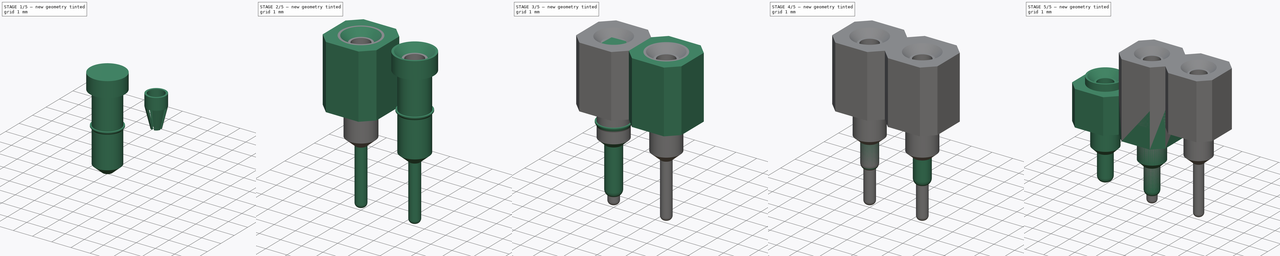
[diagram: build sequence overview — one tinted view per stage of 5, left to right]
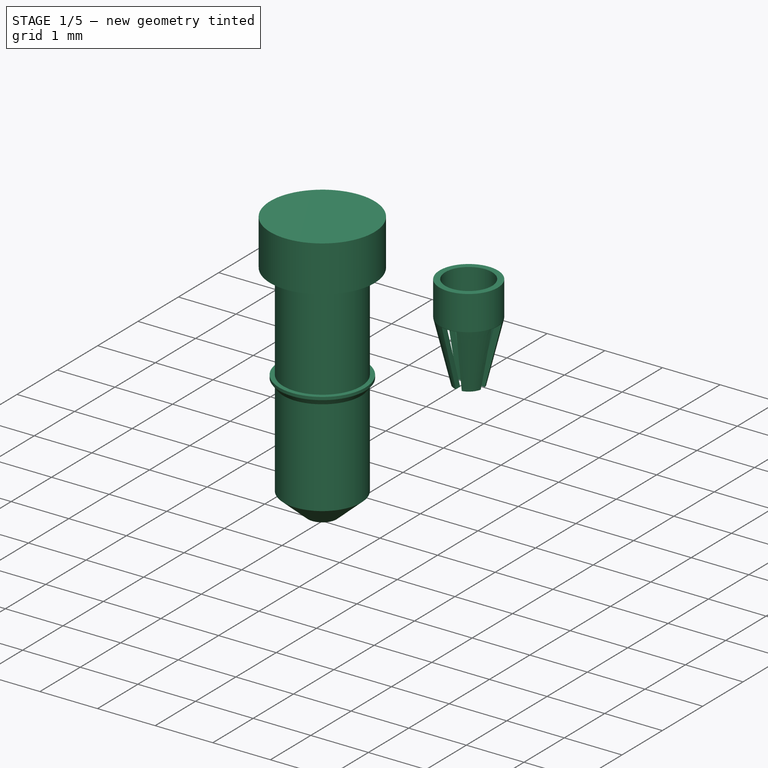
[diagram: stage 1 of 5 — iso view after this stage's code; geometry added in this stage tinted green]
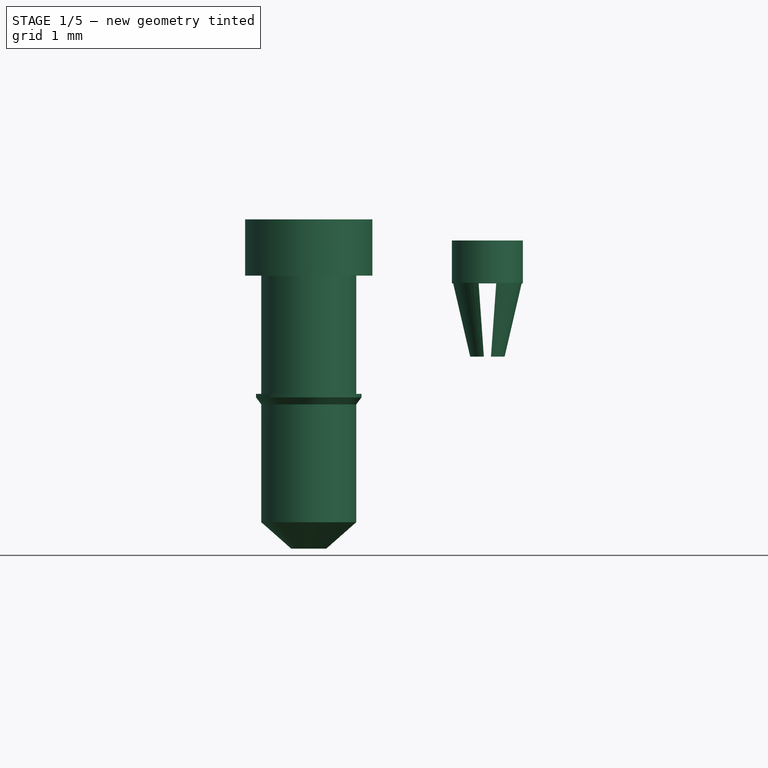
[diagram: stage 1 of 5 — front view after this stage's code; geometry added in this stage tinted green]
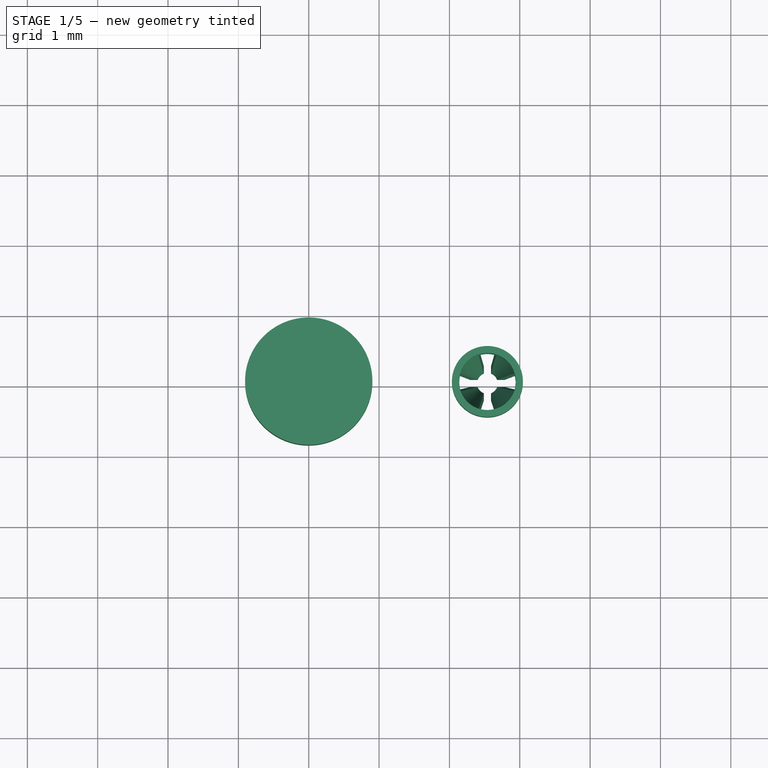
[diagram: stage 1 of 5 — top view after this stage's code; geometry added in this stage tinted green]
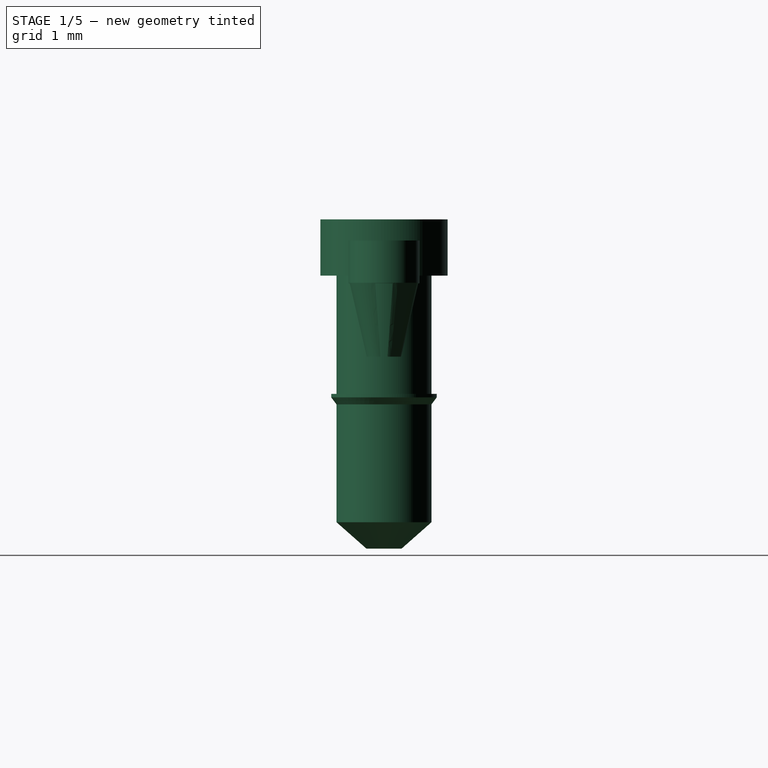
[diagram: stage 1 of 5 — right view after this stage's code; geometry added in this stage tinted green]
FCSTD DOCUMENT  (FreeCAD 0.16R6703 (Git))
Label: Socket_Round
License: All rights reserved
LicenseURL: http://en.wikipedia.org/wiki/All_rights_reserved
objects: Sketcher::SketchObject×28, Part::Extrusion×14, Part::Cut×9, Part::FeaturePython×7, Part::Loft×6, Part::MultiFuse×6, Part::Chamfer×5, Part::Compound×3, Part::Fillet×2, Part::Thickness×1
note: 81 computed .brp shape members not serialized (recipe doc carries the construction recipe); baked Part::Feature solids carry a one-line shape summary decoded from their .brp

FEATURE [Sketcher::SketchObject] Sketch008
  Placement = pos=(0,0,3.4) rot=(0,0,1;0rad)
  sketch-geometry (1):
    g0: Circle CenterX=0 CenterY=0 CenterZ=0 NormalX=0 NormalY=0 NormalZ=1 Radius=0.505
  constraints (2):
    c: Coincident(g0,g-1)
    c: Radius(g0) = 0.505
FEATURE [Sketcher::SketchObject] Sketch009
  Placement = pos=(0,0,2.8) rot=(0,0,1;0rad)
  sketch-geometry (1):
    g0: Circle CenterX=0 CenterY=0 CenterZ=0 NormalX=0 NormalY=0 NormalZ=1 Radius=0.505
  constraints (2):
    c: Coincident(g0,g-1)
    c: Radius(g0) = 0.505
FEATURE [Sketcher::SketchObject] Sketch010
  Placement = pos=(0,0,1.75) rot=(0,0,1;0rad)
  sketch-geometry (1):
    g0: Circle CenterX=0 CenterY=0 CenterZ=0 NormalX=0 NormalY=0 NormalZ=1 Radius=0.25
  constraints (2):
    c: Coincident(g0,g-1)
    c: Radius(g0) = 0.25
FEATURE [Part::Loft] Loft001
  Closed = false
  Ruled = true
  Sections = -> [Sketch008,Sketch009,Sketch010]
  Solid = true
FEATURE [Part::Thickness] Thickness
  Faces = -> Loft001 [Face3,Face4]
  Intersection = false
  Join = 2
  Mode = 0
  SelfIntersection = false
  Value = -0.1
FEATURE [Sketcher::SketchObject] Sketch011
  Placement = pos=(0,0,2.79) rot=(0,0,1;0rad)
  sketch-geometry (4):
    g0: LineSegment StartX=-0.125 StartY=0.686573 StartZ=0 EndX=0.125 EndY=0.686573 EndZ=0
    g1: LineSegment StartX=0.125 StartY=0.686573 StartZ=0 EndX=0.125 EndY=-0.7416 EndZ=0
    g2: LineSegment StartX=0.125 StartY=-0.7416 StartZ=0 EndX=-0.125 EndY=-0.7416 EndZ=0
    g3: LineSegment StartX=-0.125 StartY=-0.7416 StartZ=0 EndX=-0.125 EndY=0.686573 EndZ=0
  constraints (10):
    c: Coincident(g0,g1)
    c: Coincident(g1,g2)
    c: Coincident(g2,g3)
    c: Coincident(g3,g0)
    c: Horizontal(g0)
    c: Horizontal(g2)
    c: Vertical(g1)
    c: Vertical(g3)
    c: Symmetric(g0,g0,g-2)
    c: Distance(g0) = 0.25
FEATURE [Sketcher::SketchObject] Sketch012
  Placement = pos=(0,0,1.74) rot=(0,0,1;0rad)
  sketch-geometry (4):
    g0: LineSegment StartX=-0.05 StartY=0.686573 StartZ=0 EndX=0.05 EndY=0.686573 EndZ=0
    g1: LineSegment StartX=0.05 StartY=0.686573 StartZ=0 EndX=0.05 EndY=-0.7416 EndZ=0
    g2: LineSegment StartX=0.05 StartY=-0.7416 StartZ=0 EndX=-0.05 EndY=-0.7416 EndZ=0
    g3: LineSegment StartX=-0.05 StartY=-0.7416 StartZ=0 EndX=-0.05 EndY=0.686573 EndZ=0
  constraints (10):
    c: Coincident(g0,g1)
    c: Coincident(g1,g2)
    c: Coincident(g2,g3)
    c: Coincident(g3,g0)
    c: Horizontal(g0)
    c: Horizontal(g2)
    c: Vertical(g1)
    c: Vertical(g3)
    c: Symmetric(g0,g0,g-2)
    c: Distance(g0) = 0.1
FEATURE [Part::Loft] Loft002
  Closed = false
  Ruled = true
  Sections = -> [Sketch011,Sketch012]
  Solid = true
FEATURE [Part::Loft] Loft003
  Closed = false
  Placement = pos=(0,0,0) rot=(0,0,1;1.5708rad)
  Ruled = true
  Sections = -> [Sketch011,Sketch012]
  Solid = true
FEATURE [Part::MultiFuse] Fusion001
  Shapes = -> [Loft003,Loft002]
FEATURE [Part::Extrusion] Extrude010
  Base = -> Sketch005
  Dir = (0,0,1.68)
  Solid = true
FEATURE [Part::Extrusion] Extrude011
  Base = -> Sketch006
  Dir = (0,0,0.8)
  Placement = pos=(0,0,0.98) rot=(0,0,1;0rad)
  Solid = true
FEATURE [Sketcher::SketchObject] Sketch023
  sketch-geometry (1):
    g0: Circle CenterX=0 CenterY=0 CenterZ=0 NormalX=0 NormalY=0 NormalZ=1 Radius=0.25
  constraints (2):
    c: Coincident(g0,g-1)
    c: Radius(g0) = 0.25
FEATURE [Sketcher::SketchObject] Sketch024
  Placement = pos=(0,0,0.375) rot=(0,0,1;0rad)
  sketch-geometry (1):
    g0: Circle CenterX=0 CenterY=0 CenterZ=0 NormalX=0 NormalY=0 NormalZ=1 Radius=0.675
  constraints (2):
    c: Coincident(g0,g-1)
    c: Radius(g0) = 0.675
FEATURE [Sketcher::SketchObject] Sketch025
  Placement = pos=(0,0,2.05) rot=(0,0,1;0rad)
  sketch-geometry (1):
    g0: Circle CenterX=0 CenterY=0 CenterZ=0 NormalX=0 NormalY=0 NormalZ=1 Radius=0.675
  constraints (2):
    c: Coincident(g0,g-1)
    c: Radius(g0) = 0.675
FEATURE [Sketcher::SketchObject] Sketch026
  Placement = pos=(0,0,2.15) rot=(0,0,1;0rad)
  sketch-geometry (1):
    g0: Circle CenterX=0 CenterY=0 CenterZ=0 NormalX=0 NormalY=0 NormalZ=1 Radius=0.75
  constraints (2):
    c: Coincident(g0,g-1)
    c: Radius(g0) = 0.75
FEATURE [Sketcher::SketchObject] Sketch027
  Placement = pos=(0,0,2.2) rot=(0,0,1;0rad)
  sketch-geometry (1):
    g0: Circle CenterX=0 CenterY=0 CenterZ=0 NormalX=0 NormalY=0 NormalZ=1 Radius=0.75
  constraints (2):
    c: Coincident(g0,g-1)
    c: Radius(g0) = 0.75
FEATURE [Part::Loft] Loft006
  Closed = false
  Ruled = true
  Sections = -> [Sketch023,Sketch024,Sketch025,Sketch026,Sketch027]
  Solid = true
FEATURE [Part::MultiFuse] Fusion004
  Shapes = -> [Extrude011,Extrude010,Loft006]
FEATURE [Part::Cut] Cut008  label="spring002"
  Base = -> Thickness
  Placement = pos=(0,0,0.98) rot=(0,0,1;0rad)
  Tool = -> Fusion001
FEATURE [Part::FeaturePython] Array006  # Draft array (typed FeaturePython)
  Angle = 360
  ArrayType = 0
  Axis = (0,0,1)
  Base = -> Cut008
  Center = (0,0,0)
  Fuse = false
  IntervalAxis = (0,0,0)
  IntervalX = (2.54,0,0)
  IntervalY = (0,2.54,0)
  IntervalZ = (0,0,0)
  NumberPolar = 1
  NumberX = 2
  NumberY = 1
  NumberZ = 1
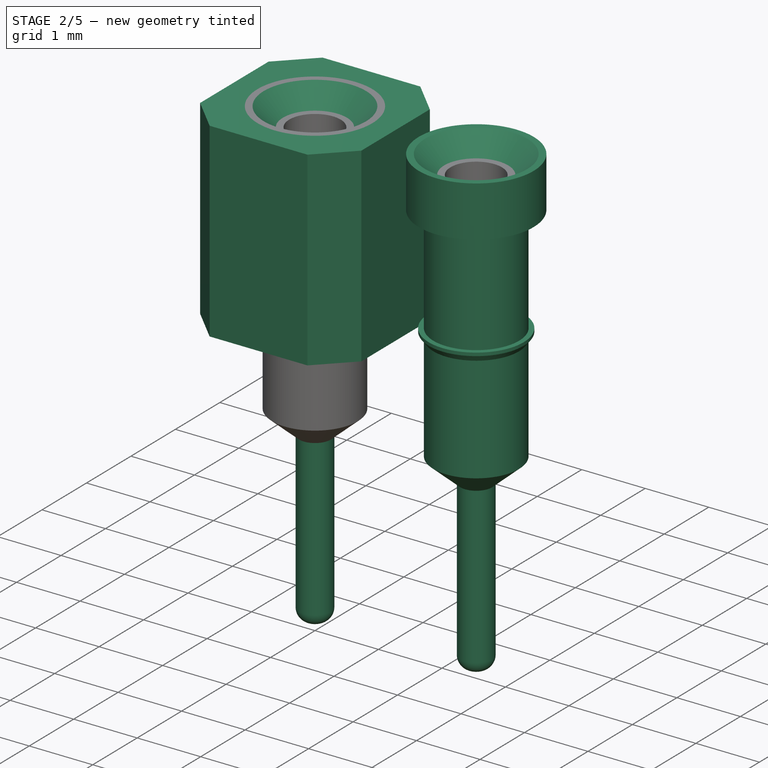
[diagram: stage 2 of 5 — iso view after this stage's code; geometry added in this stage tinted green]
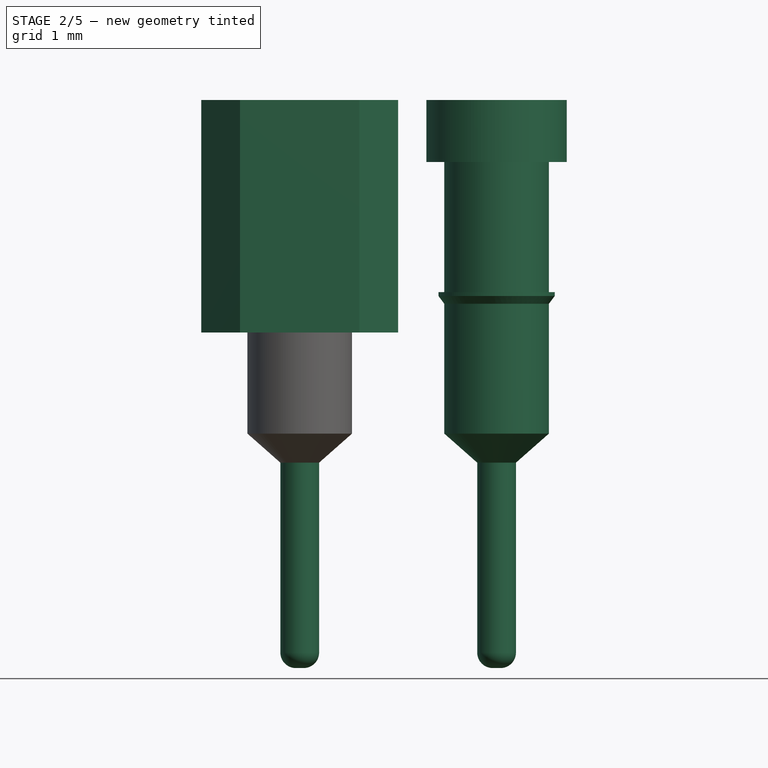
[diagram: stage 2 of 5 — front view after this stage's code; geometry added in this stage tinted green]
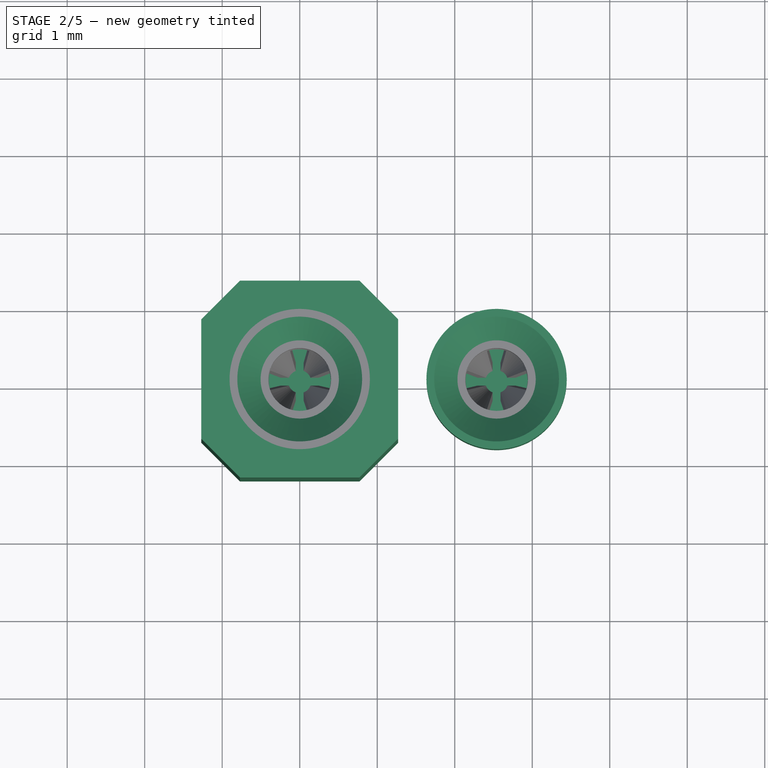
[diagram: stage 2 of 5 — top view after this stage's code; geometry added in this stage tinted green]
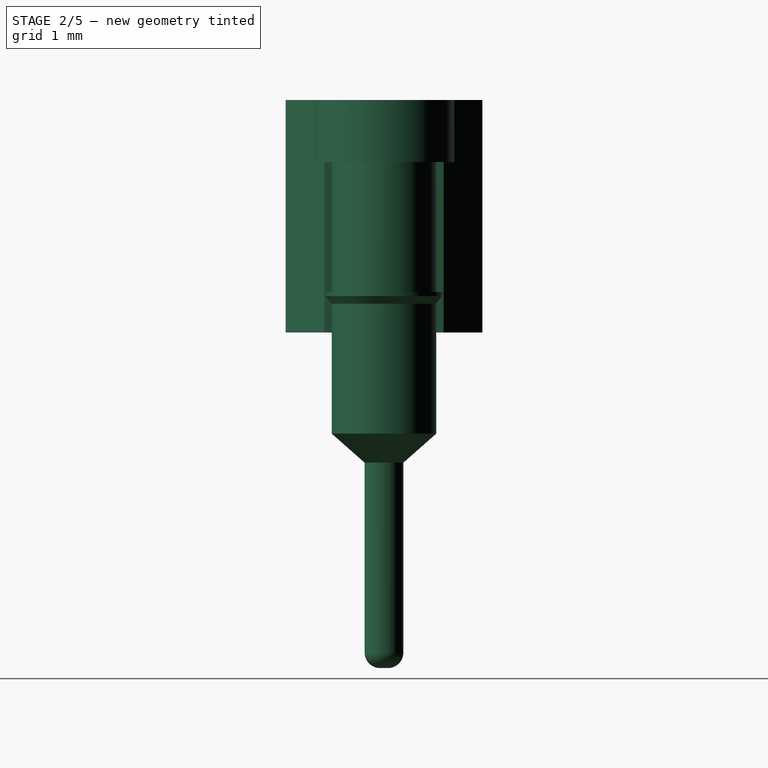
[diagram: stage 2 of 5 — right view after this stage's code; geometry added in this stage tinted green]
FEATURE [Part::Extrusion] Extrude009
  Base = -> Sketch007
  Dir = (0,0,6)
  Solid = true
FEATURE [Part::Cut] Cut006
  Base = -> Fusion004
  Tool = -> Extrude009
FEATURE [Part::Extrusion] Extrude012
  Base = -> Sketch023
  Dir = (0,0,-2.65)
  Solid = true
FEATURE [Part::Fillet] Fillet001
  Base = -> Extrude012
  Edges = 1 edges r=0.2: [Edge3]
FEATURE [Part::Extrusion] Extrude013
  Base = -> Sketch022
  Dir = (0,0,3)
  Solid = true
FEATURE [Part::Chamfer] Chamfer003
  Base = -> Extrude013
  Edges = 4 edges r=0.5: [Edge1,Edge2,Edge5,Edge8]
  Placement = pos=(0,0,1.68) rot=(0,0,1;0rad)
FEATURE [Part::Cut] Cut007  label="body_L3"
  Base = -> Chamfer003
  Tool = -> Fusion004
FEATURE [Part::Chamfer] Chamfer004
  Base = -> Cut006
  Edges = 1 edges r=0.3: [Edge16]
FEATURE [Part::MultiFuse] Fusion005  label="socket_L4.68"
  Shapes = -> [Chamfer004,Fillet001]
FEATURE [Part::FeaturePython] Array005  # Draft array (typed FeaturePython)
  Angle = 360
  ArrayType = 0
  Axis = (0,0,1)
  Base = -> Fusion005
  Center = (0,0,0)
  Fuse = false
  IntervalAxis = (0,0,0)
  IntervalX = (2.54,0,0)
  IntervalY = (0,2.54,0)
  IntervalZ = (0,0,0)
  NumberPolar = 1
  NumberX = 2
  NumberY = 1
  NumberZ = 1
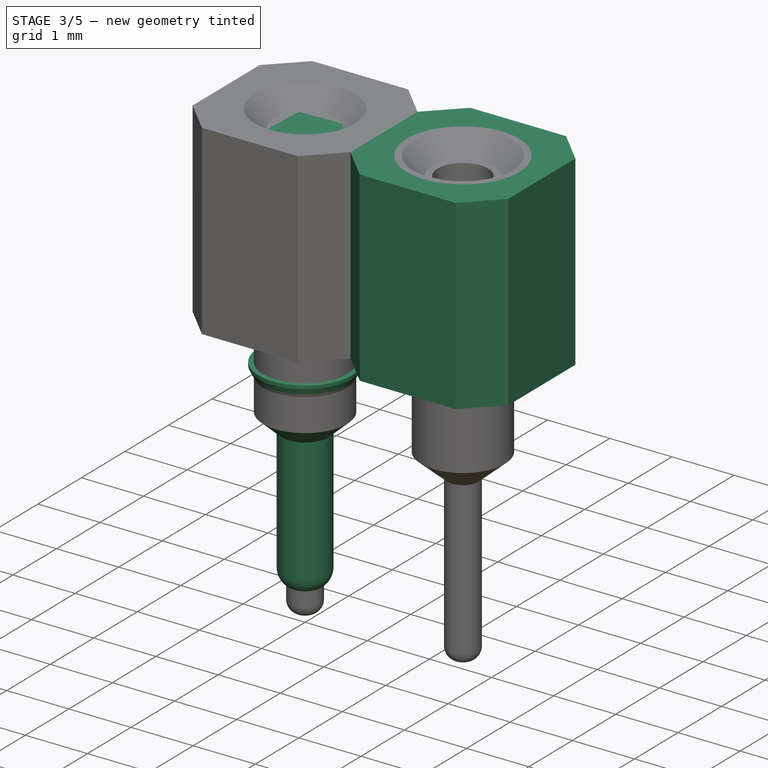
[diagram: stage 3 of 5 — iso view after this stage's code; geometry added in this stage tinted green]
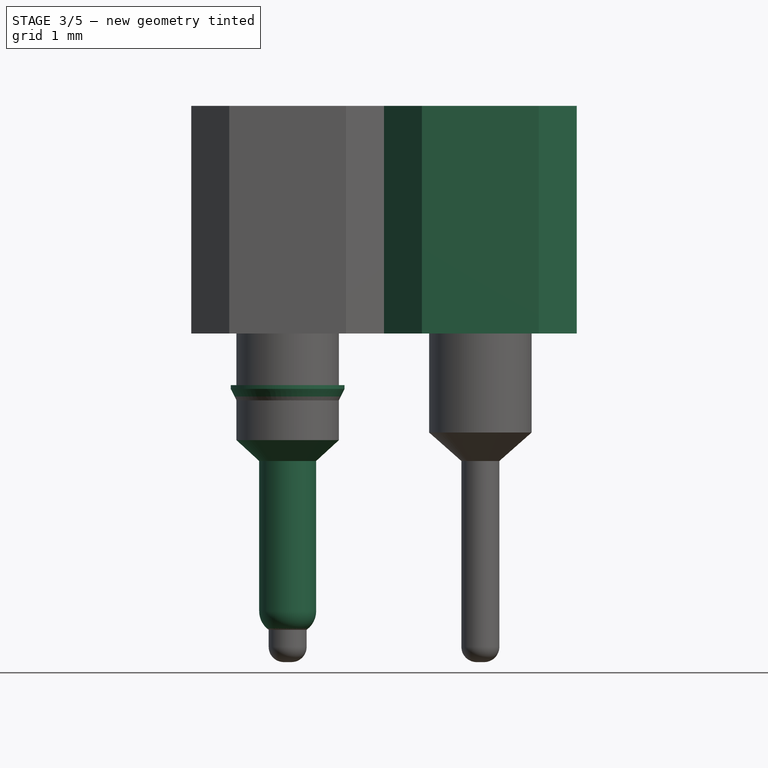
[diagram: stage 3 of 5 — front view after this stage's code; geometry added in this stage tinted green]
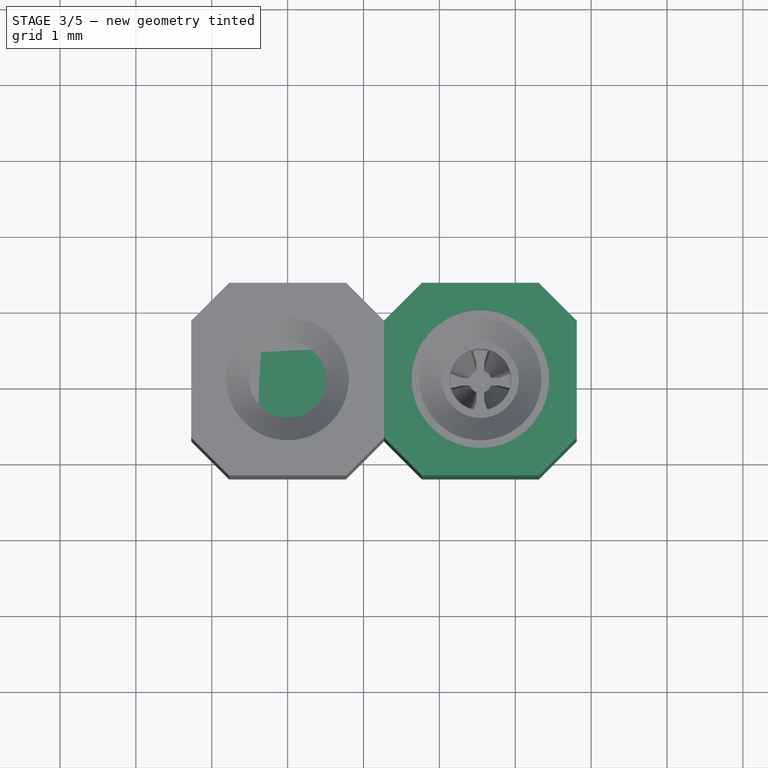
[diagram: stage 3 of 5 — top view after this stage's code; geometry added in this stage tinted green]
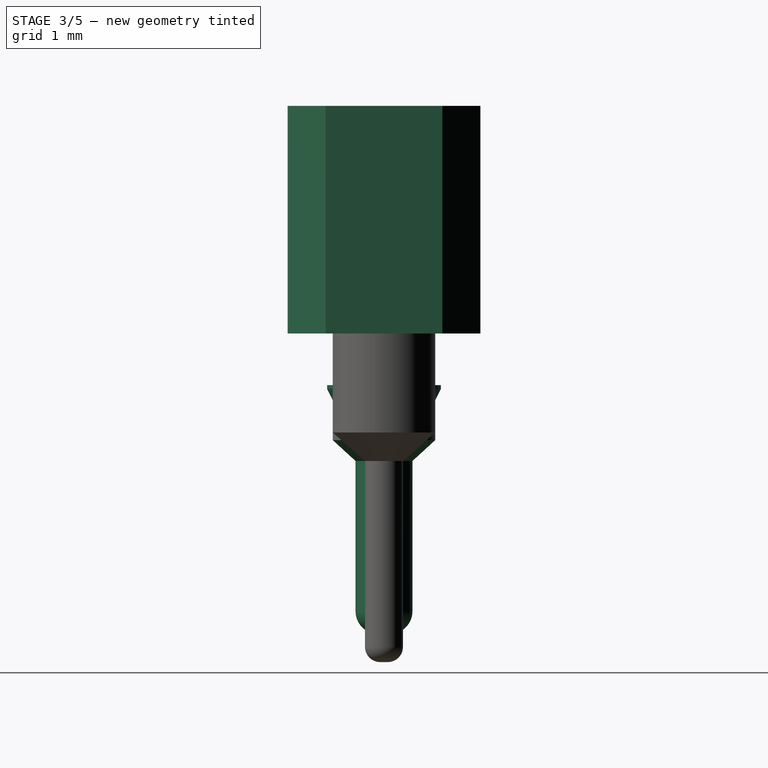
[diagram: stage 3 of 5 — right view after this stage's code; geometry added in this stage tinted green]
FEATURE [Sketcher::SketchObject] Sketch013
  sketch-geometry (1):
    g0: Circle CenterX=0 CenterY=0 CenterZ=0 NormalX=0 NormalY=0 NormalZ=1 Radius=0.375
  constraints (2):
    c: Coincident(g0,g-1)
    c: Radius(g0) = 0.375
FEATURE [Sketcher::SketchObject] Sketch014
  Placement = pos=(0,0,0.275) rot=(0,0,1;0rad)
  sketch-geometry (1):
    g0: Circle CenterX=0 CenterY=0 CenterZ=0 NormalX=0 NormalY=0 NormalZ=1 Radius=0.675
  constraints (2):
    c: Coincident(g0,g-1)
    c: Radius(g0) = 0.675
FEATURE [Sketcher::SketchObject] Sketch015
  Placement = pos=(0,0,0.8) rot=(0,0,1;0rad)
  sketch-geometry (1):
    g0: Circle CenterX=0 CenterY=0 CenterZ=0 NormalX=0 NormalY=0 NormalZ=1 Radius=0.675
  constraints (2):
    c: Coincident(g0,g-1)
    c: Radius(g0) = 0.675
FEATURE [Sketcher::SketchObject] Sketch016
  Placement = pos=(0,0,0.95) rot=(0,0,1;0rad)
  sketch-geometry (1):
    g0: Circle CenterX=0 CenterY=0 CenterZ=0 NormalX=0 NormalY=0 NormalZ=1 Radius=0.75
  constraints (2):
    c: Coincident(g0,g-1)
    c: Radius(g0) = 0.75
FEATURE [Sketcher::SketchObject] Sketch017
  Placement = pos=(0,0,1) rot=(0,0,1;0rad)
  sketch-geometry (1):
    g0: Circle CenterX=0 CenterY=0 CenterZ=0 NormalX=0 NormalY=0 NormalZ=1 Radius=0.75
  constraints (2):
    c: Coincident(g0,g-1)
    c: Radius(g0) = 0.75
FEATURE [Sketcher::SketchObject] Sketch018
  Placement = pos=(0,0,1) rot=(0,0,1;0rad)
  sketch-geometry (1):
    g0: Circle CenterX=0 CenterY=0 CenterZ=0 NormalX=0 NormalY=0 NormalZ=1 Radius=0.675
  constraints (2):
    c: Coincident(g0,g-1)
    c: Radius(g0) = 0.675
FEATURE [Part::Loft] Loft004
  Closed = false
  Ruled = true
  Sections = -> [Sketch013,Sketch014,Sketch015,Sketch016,Sketch017]
  Solid = true
FEATURE [Sketcher::SketchObject] Sketch019
  Placement = pos=(0,0,2.3) rot=(0,0,1;0rad)
  sketch-geometry (1):
    g0: Circle CenterX=0 CenterY=0 CenterZ=0 NormalX=0 NormalY=0 NormalZ=1 Radius=0.905
  constraints (2):
    c: Coincident(g0,g-1)
    c: Radius(g0) = 0.905
FEATURE [Part::Extrusion] Extrude003
  Base = -> Sketch019
  Dir = (0,0,0.24)
  Solid = true
FEATURE [Part::Extrusion] Extrude004
  Base = -> Sketch018
  Dir = (0,0,1.3)
  Solid = true
FEATURE [Sketcher::SketchObject] Sketch020
  Placement = pos=(0,0,0.4) rot=(0,0,1;0rad)
  sketch-geometry (1):
    g0: Circle CenterX=0 CenterY=0 CenterZ=0 NormalX=0 NormalY=0 NormalZ=1 Radius=0.505
  constraints (2):
    c: Coincident(g0,g-1)
    c: Radius(g0) = 0.505
FEATURE [Part::Extrusion] Extrude005
  Base = -> Sketch020
  Dir = (0,0,4)
  Solid = true
FEATURE [Part::MultiFuse] Fusion002
  Shapes = -> [Loft004,Extrude003,Extrude004]
FEATURE [Part::Extrusion] Extrude006
  Base = -> Sketch013
  Dir = (0,0,-2.28)
  Solid = true
FEATURE [Part::Fillet] Fillet
  Base = -> Extrude006
  Edges = 1 edges r=0.3: [Edge3]
FEATURE [Sketcher::SketchObject] Sketch021
  sketch-geometry (1):
    g0: Circle CenterX=0 CenterY=0 CenterZ=0 NormalX=0 NormalY=0 NormalZ=1 Radius=0.3
  constraints (2):
    c: Coincident(g0,g-1)
    c: Radius(g0) = 0.3
FEATURE [Part::Extrusion] Extrude007
  Base = -> Sketch021
  Dir = (0,0,-2)
  Solid = true
FEATURE [Part::Cut] Cut003
  Base = -> Fillet
  Tool = -> Extrude007
FEATURE [Part::FeaturePython] Array004  # Draft array (typed FeaturePython)
  Angle = 360
  ArrayType = 0
  Axis = (0,0,1)
  Base = -> Cut007
  Center = (0,0,0)
  Fuse = false
  IntervalAxis = (0,0,0)
  IntervalX = (2.54,0,0)
  IntervalY = (0,2.54,0)
  IntervalZ = (0,0,0)
  NumberPolar = 1
  NumberX = 2
  NumberY = 1
  NumberZ = 1
FEATURE [Part::Compound] Compound002  label="1x02_H3_L4.68"
  Links = -> [Array004,Array006,Array005]
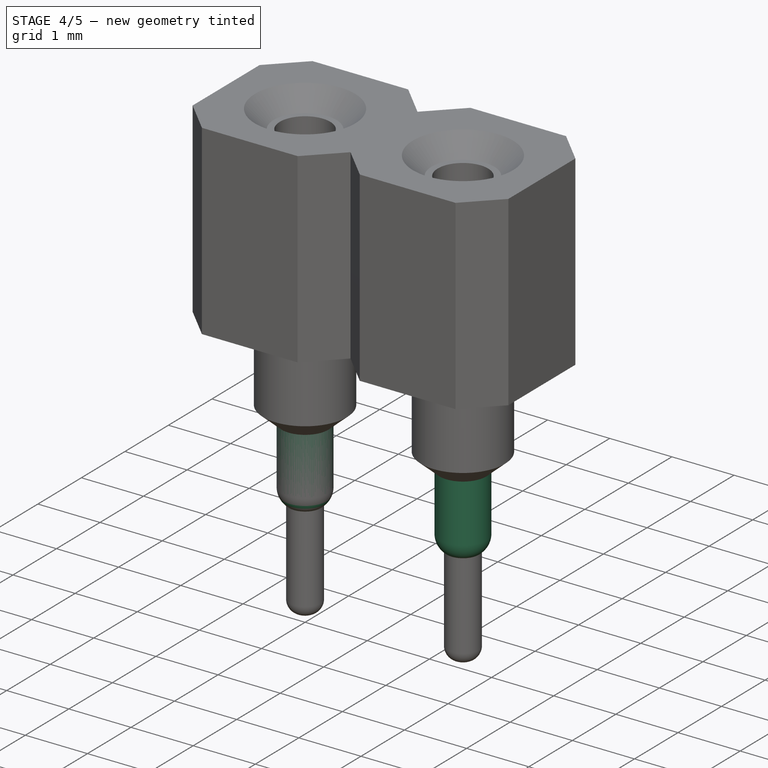
[diagram: stage 4 of 5 — iso view after this stage's code; geometry added in this stage tinted green]
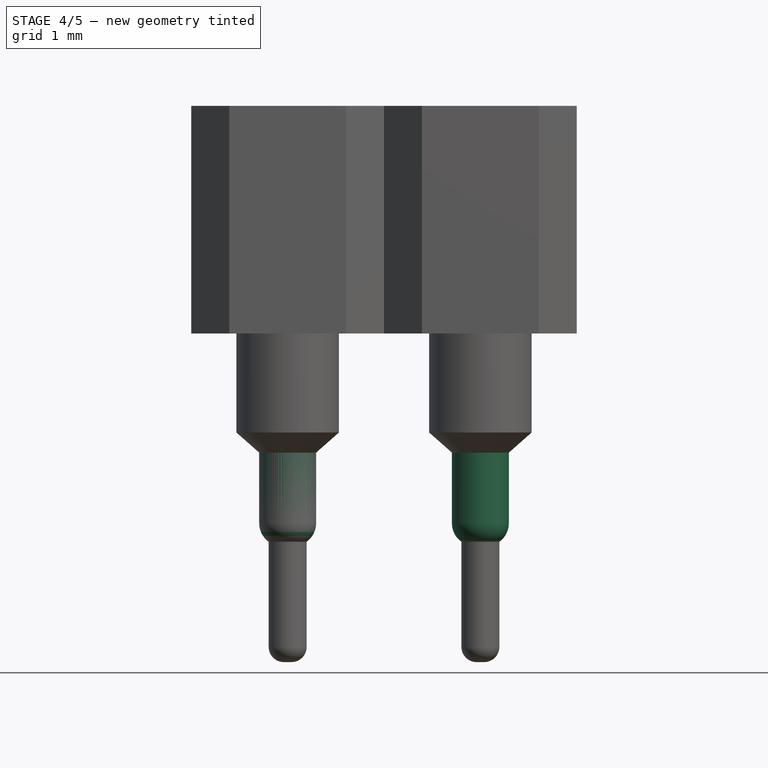
[diagram: stage 4 of 5 — front view after this stage's code; geometry added in this stage tinted green]
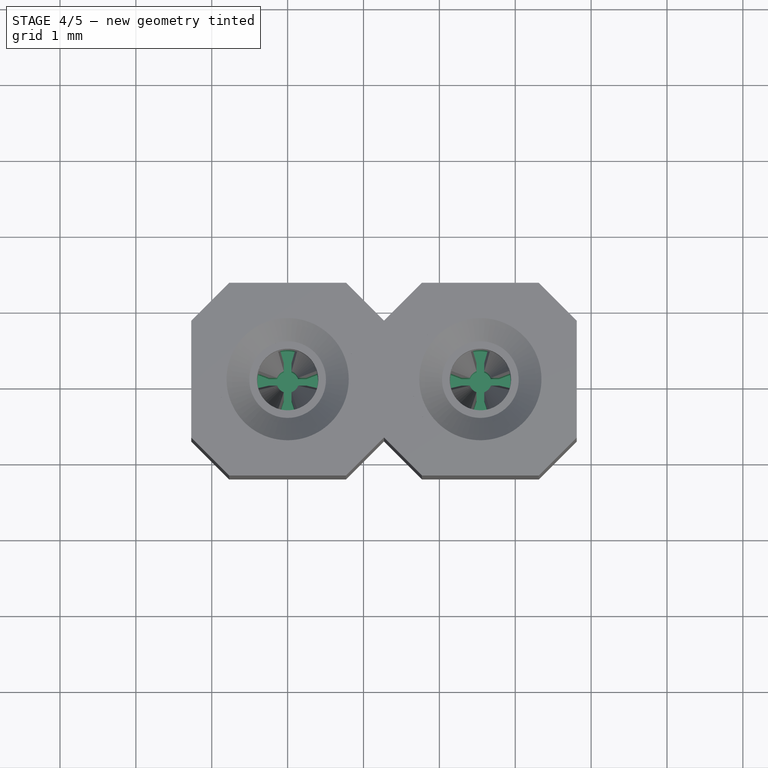
[diagram: stage 4 of 5 — top view after this stage's code; geometry added in this stage tinted green]
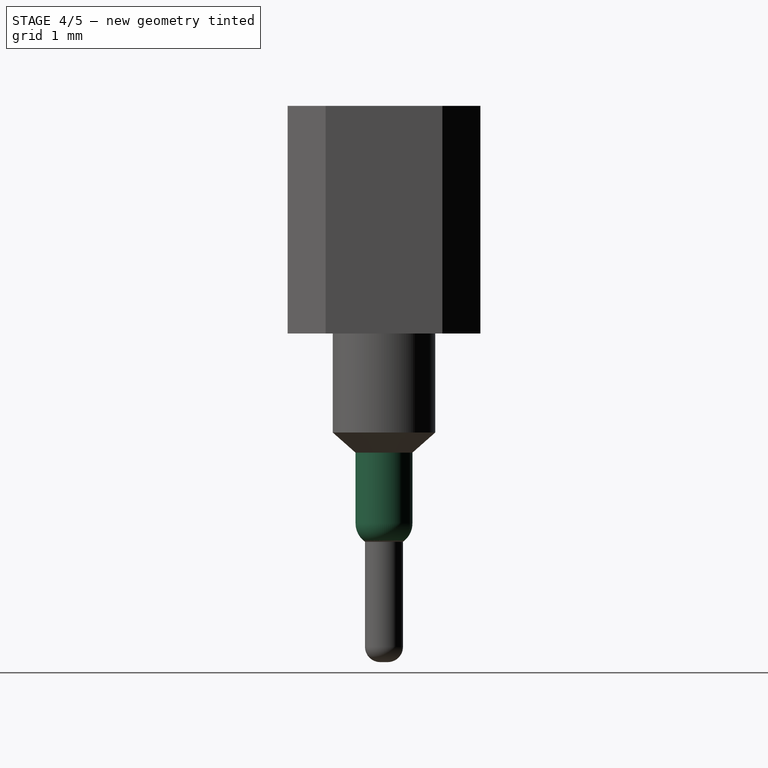
[diagram: stage 4 of 5 — right view after this stage's code; geometry added in this stage tinted green]
FEATURE [Part::Cut] Cut002
  Base = -> Fusion002
  Tool = -> Extrude005
FEATURE [Part::Chamfer] Chamfer001
  Base = -> Cut002
  Edges = 1 edges r=0.3: [Edge16]
FEATURE [Part::MultiFuse] Fusion003  label="socket_L4.82"
  Placement = pos=(0,0,1.16) rot=(0,0,1;0rad)
  Shapes = -> [Chamfer001,Cut003]
FEATURE [Sketcher::SketchObject] Sketch022
  sketch-geometry (4):
    g0: LineSegment StartX=-1.27 StartY=1.27 StartZ=0 EndX=1.27 EndY=1.27 EndZ=0
    g1: LineSegment StartX=1.27 StartY=1.27 StartZ=0 EndX=1.27 EndY=-1.27 EndZ=0
    g2: LineSegment StartX=1.27 StartY=-1.27 StartZ=0 EndX=-1.27 EndY=-1.27 EndZ=0
    g3: LineSegment StartX=-1.27 StartY=-1.27 StartZ=0 EndX=-1.27 EndY=1.27 EndZ=0
  constraints (12):
    c: Coincident(g0,g1)
    c: Coincident(g1,g2)
    c: Coincident(g2,g3)
    c: Coincident(g3,g0)
    c: Horizontal(g0)
    c: Horizontal(g2)
    c: Vertical(g1)
    c: Vertical(g3)
    c: Symmetric(g0,g0,g-2)
    c: Symmetric(g0,g1,g-1)
    c: Equal(g1,g0)
    c: Distance(g1) = 2.54
FEATURE [Part::Extrusion] Extrude008
  Base = -> Sketch022
  Dir = (0,0,1.9)
  Solid = true
FEATURE [Part::Chamfer] Chamfer002
  Base = -> Extrude008
  Edges = 4 edges r=0.5: [Edge1,Edge2,Edge5,Edge8]
  Placement = pos=(0,0,0.64) rot=(0,0,1;0rad)
FEATURE [Part::Cut] Cut004  label="body_L1.9"
  Base = -> Chamfer002
  Placement = pos=(0,0,1.16) rot=(0,0,1;0rad)
  Tool = -> Fusion002
FEATURE [Part::Cut] Cut005  label="spring001"
  Base = -> Thickness
  Tool = -> Fusion001
FEATURE [Part::FeaturePython] Array001  # Draft array (typed FeaturePython)
  Angle = 360
  ArrayType = 0
  Axis = (0,0,1)
  Base = -> Cut005
  Center = (0,0,0)
  Fuse = false
  IntervalAxis = (0,0,0)
  IntervalX = (2.54,0,0)
  IntervalY = (0,2.54,0)
  IntervalZ = (0,0,0)
  NumberPolar = 1
  NumberX = 2
  NumberY = 1
  NumberZ = 1
FEATURE [Part::FeaturePython] Array002  # Draft array (typed FeaturePython)
  Angle = 360
  ArrayType = 0
  Axis = (0,0,1)
  Base = -> Cut004
  Center = (0,0,0)
  Fuse = false
  IntervalAxis = (0,0,0)
  IntervalX = (2.54,0,0)
  IntervalY = (0,2.54,0)
  IntervalZ = (0,0,0)
  NumberPolar = 1
  NumberX = 2
  NumberY = 1
  NumberZ = 1
FEATURE [Part::FeaturePython] Array003  # Draft array (typed FeaturePython)
  Angle = 360
  ArrayType = 0
  Axis = (0,0,1)
  Base = -> Fusion003
  Center = (0,0,0)
  Fuse = false
  IntervalAxis = (0,0,0)
  IntervalX = (2.54,0,0)
  IntervalY = (0,2.54,0)
  IntervalZ = (0,0,0)
  NumberPolar = 1
  NumberX = 2
  NumberY = 1
  NumberZ = 1
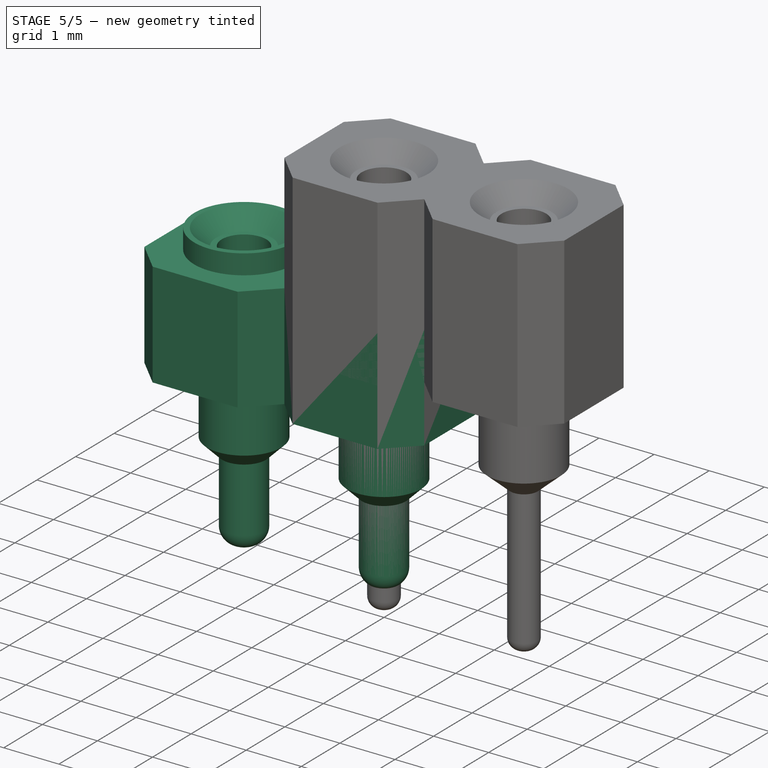
[diagram: stage 5 of 5 — iso view after this stage's code; geometry added in this stage tinted green]
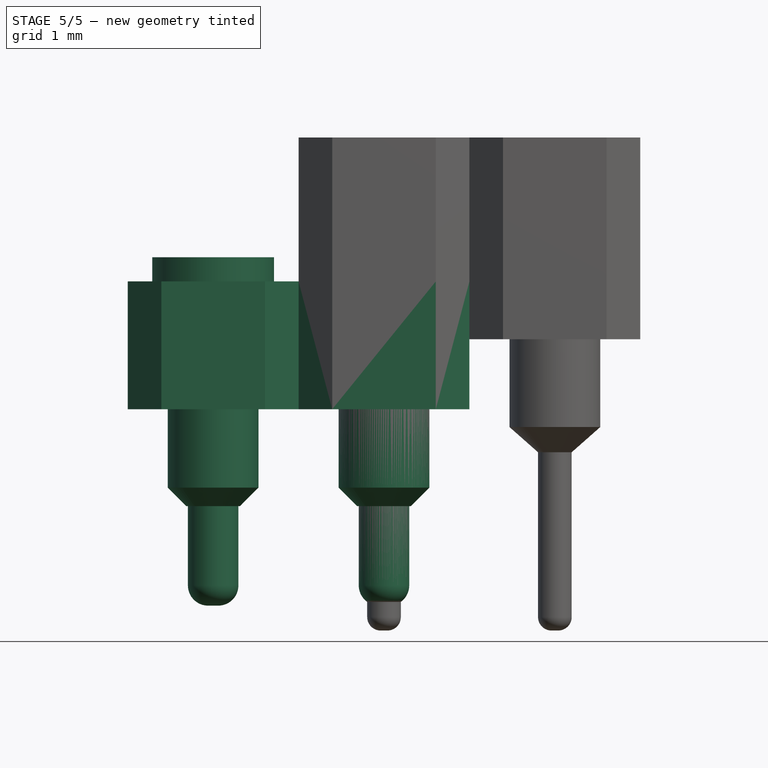
[diagram: stage 5 of 5 — front view after this stage's code; geometry added in this stage tinted green]
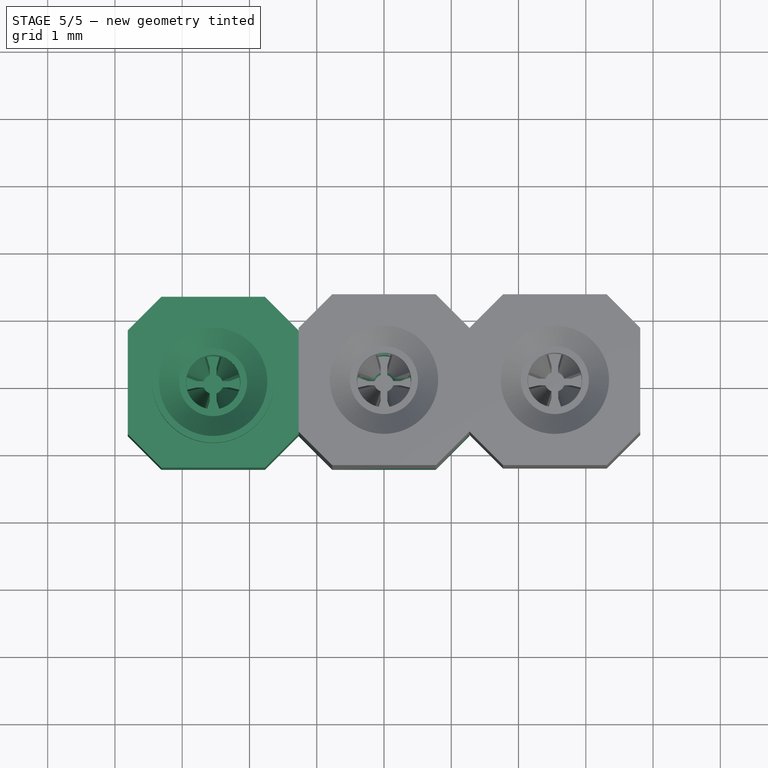
[diagram: stage 5 of 5 — top view after this stage's code; geometry added in this stage tinted green]
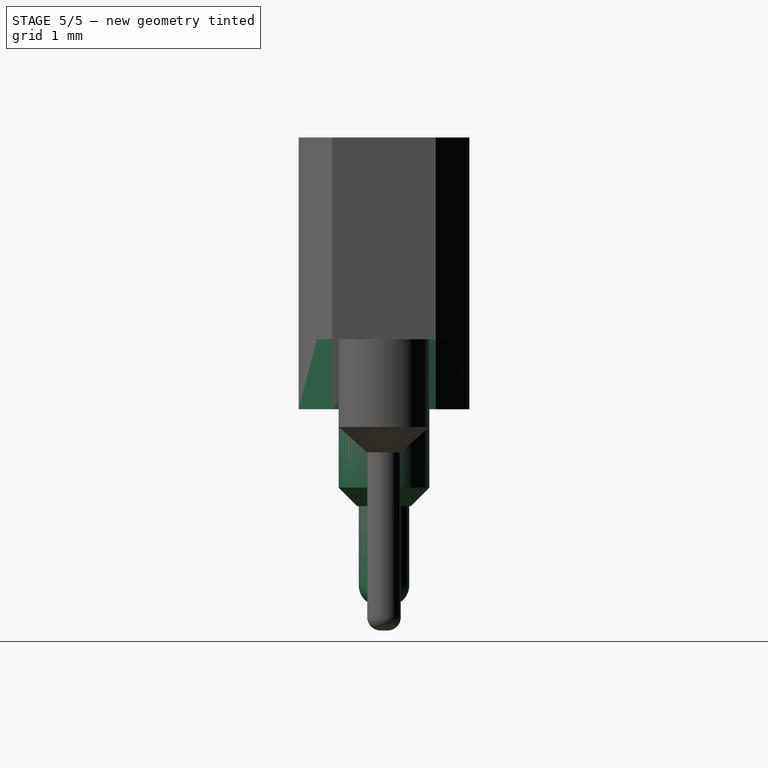
[diagram: stage 5 of 5 — right view after this stage's code; geometry added in this stage tinted green]
FEATURE [Sketcher::SketchObject] Sketch
  sketch-geometry (1):
    g0: Circle CenterX=0 CenterY=0 CenterZ=0 NormalX=0 NormalY=0 NormalZ=1 Radius=0.4
  constraints (2):
    c: Coincident(g0,g-1)
    c: Radius(g0) = 0.4
FEATURE [Sketcher::SketchObject] Sketch001
  Placement = pos=(0,0,0.275) rot=(0,0,1;0rad)
  sketch-geometry (1):
    g0: Circle CenterX=0 CenterY=0 CenterZ=0 NormalX=0 NormalY=0 NormalZ=1 Radius=0.675
  constraints (2):
    c: Coincident(g0,g-1)
    c: Radius(g0) = 0.675
FEATURE [Sketcher::SketchObject] Sketch002
  Placement = pos=(0,0,2.05) rot=(0,0,1;0rad)
  sketch-geometry (1):
    g0: Circle CenterX=0 CenterY=0 CenterZ=0 NormalX=0 NormalY=0 NormalZ=1 Radius=0.675
  constraints (2):
    c: Coincident(g0,g-1)
    c: Radius(g0) = 0.675
FEATURE [Sketcher::SketchObject] Sketch003
  Placement = pos=(0,0,2.15) rot=(0,0,1;0rad)
  sketch-geometry (1):
    g0: Circle CenterX=0 CenterY=0 CenterZ=0 NormalX=0 NormalY=0 NormalZ=1 Radius=0.75
  constraints (2):
    c: Coincident(g0,g-1)
    c: Radius(g0) = 0.75
FEATURE [Sketcher::SketchObject] Sketch004
  Placement = pos=(0,0,2.2) rot=(0,0,1;0rad)
  sketch-geometry (1):
    g0: Circle CenterX=0 CenterY=0 CenterZ=0 NormalX=0 NormalY=0 NormalZ=1 Radius=0.75
  constraints (2):
    c: Coincident(g0,g-1)
    c: Radius(g0) = 0.75
FEATURE [Sketcher::SketchObject] Sketch005
  Placement = pos=(0,0,2.2) rot=(0,0,1;0rad)
  sketch-geometry (1):
    g0: Circle CenterX=0 CenterY=0 CenterZ=0 NormalX=0 NormalY=0 NormalZ=1 Radius=0.675
  constraints (2):
    c: Coincident(g0,g-1)
    c: Radius(g0) = 0.675
FEATURE [Part::Loft] Loft
  Closed = false
  Ruled = true
  Sections = -> [Sketch,Sketch001,Sketch002,Sketch003,Sketch004]
  Solid = true
FEATURE [Sketcher::SketchObject] Sketch006
  Placement = pos=(0,0,2.9) rot=(0,0,1;0rad)
  sketch-geometry (1):
    g0: Circle CenterX=0 CenterY=0 CenterZ=0 NormalX=0 NormalY=0 NormalZ=1 Radius=0.905
  constraints (2):
    c: Coincident(g0,g-1)
    c: Radius(g0) = 0.905
FEATURE [Part::Extrusion] Extrude
  Base = -> Sketch006
  Dir = (0,0,0.8)
  Solid = true
FEATURE [Part::Extrusion] Extrude001
  Base = -> Sketch005
  Dir = (0,0,0.7)
  Solid = true
FEATURE [Sketcher::SketchObject] Sketch007
  Placement = pos=(0,0,0.4) rot=(0,0,1;0rad)
  sketch-geometry (1):
    g0: Circle CenterX=0 CenterY=0 CenterZ=0 NormalX=0 NormalY=0 NormalZ=1 Radius=0.505
  constraints (2):
    c: Coincident(g0,g-1)
    c: Radius(g0) = 0.505
FEATURE [Part::Extrusion] Extrude002
  Base = -> Sketch007
  Dir = (0,0,4)
  Solid = true
FEATURE [Part::MultiFuse] Fusion
  Shapes = -> [Loft,Extrude,Extrude001]
FEATURE [Part::Cut] Cut
  Base = -> Fusion
  Tool = -> Extrude002
FEATURE [Part::Chamfer] Chamfer  label="socket_L3.7"
  Base = -> Cut
  Edges = 1 edges r=0.3: [Edge5]
FEATURE [Part::Cut] Cut001  label="spring"
  Base = -> Thickness
  Tool = -> Fusion001
FEATURE [Part::Compound] Compound
  Links = -> [Chamfer,Cut001]
  Placement = pos=(0,0,-0.8) rot=(0,0,1;0rad)
FEATURE [Part::FeaturePython] Array  label="1x02_L3.7"  # Draft array (typed FeaturePython)
  Angle = 360
  ArrayType = 0
  Axis = (0,0,1)
  Base = -> Compound
  Center = (0,0,0)
  Fuse = false
  IntervalAxis = (0,0,0)
  IntervalX = (2.54,0,0)
  IntervalY = (0,2.54,0)
  IntervalZ = (0,0,0)
  NumberPolar = 1
  NumberX = 2
  NumberY = 1
  NumberZ = 1
  Placement = pos=(0,0,0) rot=(0,0,1;3.14159rad)
FEATURE [Part::Compound] Compound001  label="1x02_H1.9_L4.82"
  Links = -> [Array001,Array002,Array003]
  Placement = pos=(0,0,-1.16) rot=(0,0,1;3.14159rad)
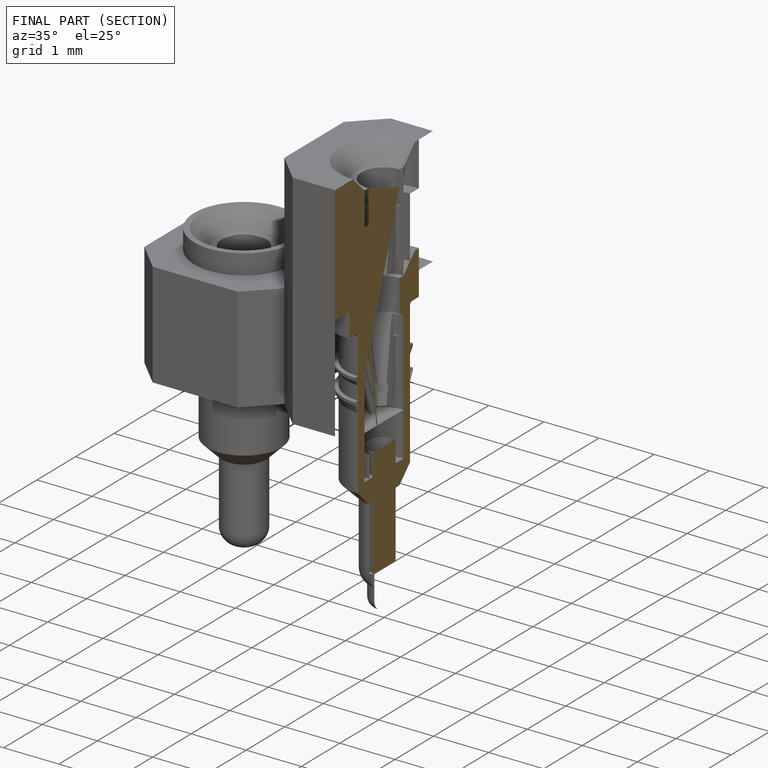
[diagram: finished part — half-section view (interior)]
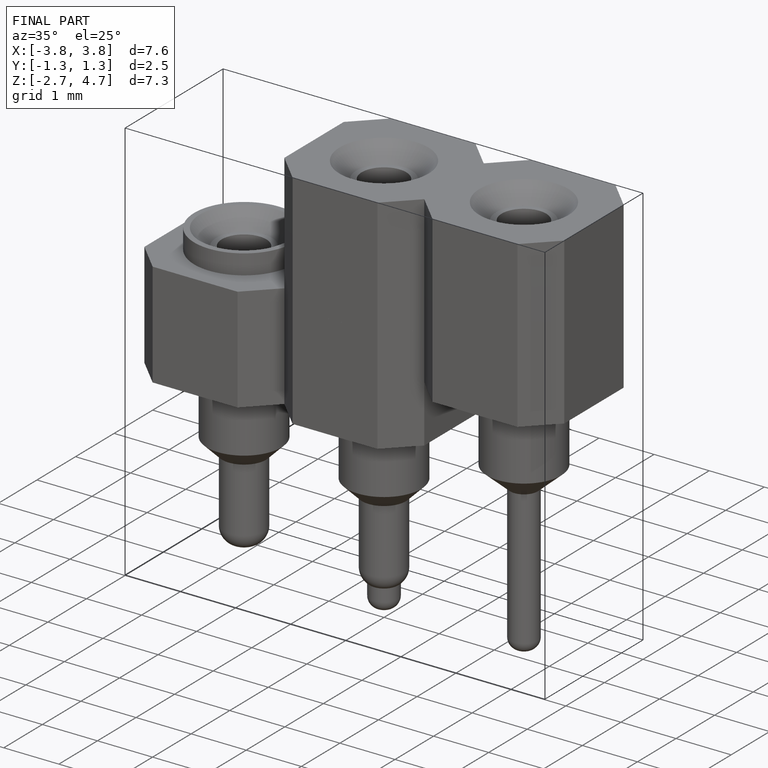
[diagram: finished part — iso view with bounding-box wireframe]
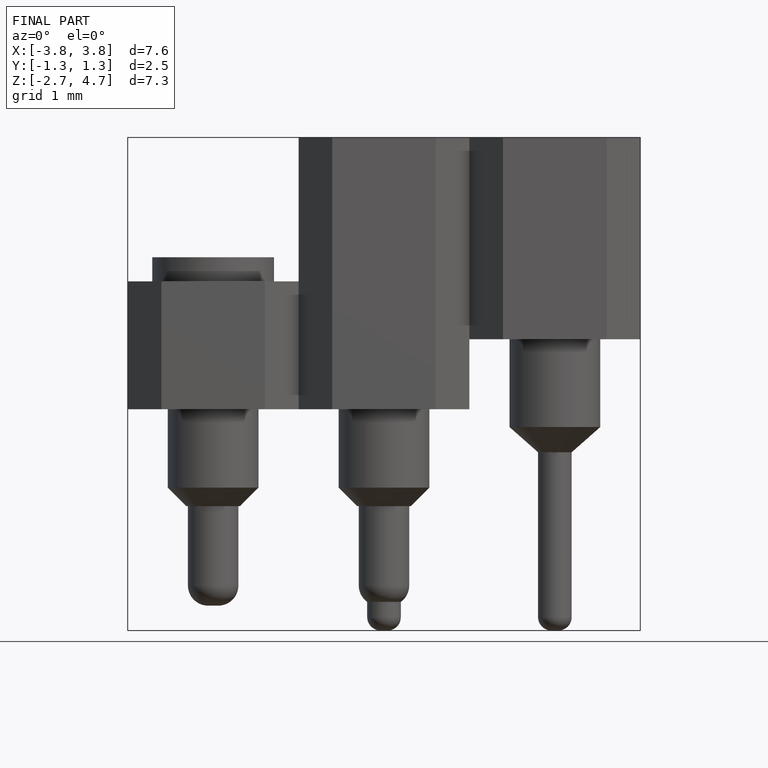
[diagram: finished part — front view with bounding-box wireframe]
